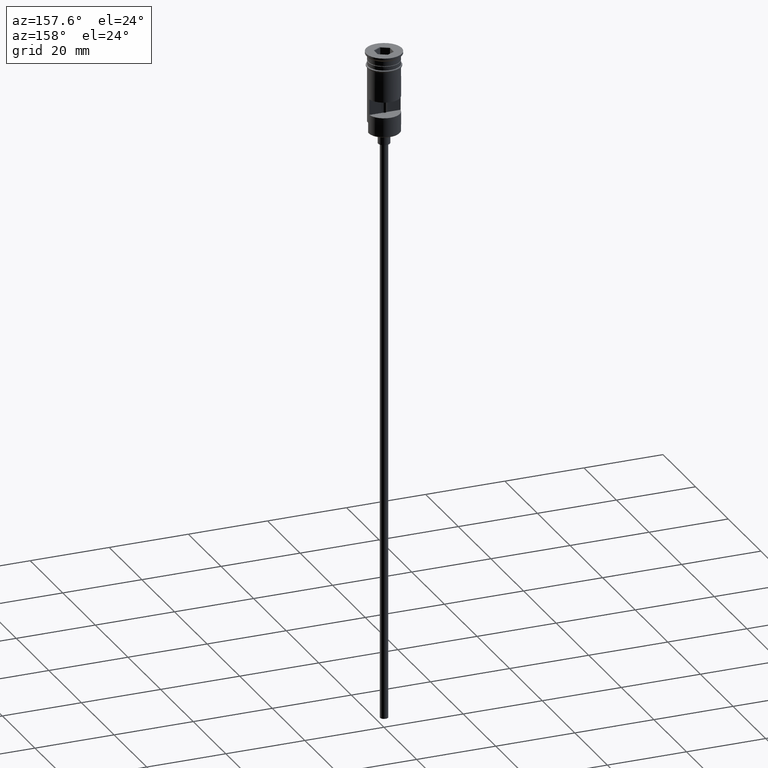
[diagram: clean part render]
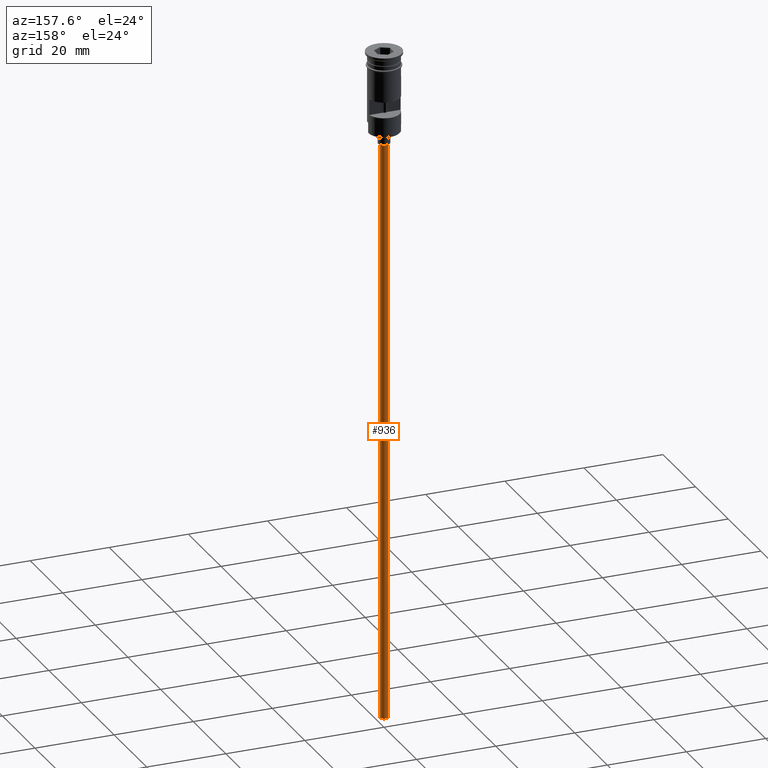
[diagram: same view with one face highlighted and labeled with its STEP entity id]
A machine part, auxiliary view. The second image highlights one B-rep face of the part: STEP entity #936.
In plain terms, the highlighted cylindrical surface (edge-blend (fillet) strip) has radius 1 mm, axis along (-0, -0, 1).
Its self-contained STEP definition (entity closure, byte-faithful):
#16 = DIRECTION ( 'NONE',  ( 1.000000000000000000, 0.000000000000000000, 0.000000000000000000 ) ) ;
#40 = CARTESIAN_POINT ( 'NONE',  ( 0.9999999999999997780, 0.000000000000000000, -23.49999999999999645 ) ) ;
#114 = LINE ( 'NONE', #605, #441 ) ;
#144 = CYLINDRICAL_SURFACE ( 'NONE', #1050, 0.9999999999999997780 ) ;
#158 = CIRCLE ( 'NONE', #1205, 0.9999999999999997780 ) ;
#190 = VERTEX_POINT ( 'NONE', #536 ) ;
#221 = VERTEX_POINT ( 'NONE', #1290 ) ;
#335 = DIRECTION ( 'NONE',  ( 0.000000000000000000, 0.000000000000000000, -1.000000000000000000 ) ) ;
#441 = VECTOR ( 'NONE', #1245, 1000.000000000000000 ) ;
#468 = AXIS2_PLACEMENT_3D ( 'NONE', #617, #1349, #1084 ) ;
#508 = ORIENTED_EDGE ( 'NONE', *, *, #1346, .F. ) ;
#519 = LINE ( 'NONE', #631, #1333 ) ;
#536 = CARTESIAN_POINT ( 'NONE',  ( -0.9999999999999997780, 1.224646799147352961E-16, -170.4999999999999716 ) ) ;
#555 = EDGE_CURVE ( 'NONE', #190, #221, #114, .T. ) ;
#605 = CARTESIAN_POINT ( 'NONE',  ( -0.9999999999999997780, 1.224646799147352961E-16, -170.4999999999999716 ) ) ;
#611 = ORIENTED_EDGE ( 'NONE', *, *, #1557, .F. ) ;
#617 = CARTESIAN_POINT ( 'NONE',  ( 0.000000000000000000, 0.000000000000000000, -170.4999999999999716 ) ) ;
#625 = CARTESIAN_POINT ( 'NONE',  ( 0.000000000000000000, 0.000000000000000000, -170.4999999999999716 ) ) ;
#631 = CARTESIAN_POINT ( 'NONE',  ( 0.9999999999999997780, 0.000000000000000000, -170.4999999999999716 ) ) ;
#681 = DIRECTION ( 'NONE',  ( -1.000000000000000000, 0.000000000000000000, 0.000000000000000000 ) ) ;
#722 = EDGE_CURVE ( 'NONE', #221, #1088, #158, .T. ) ;
#936 = ADVANCED_FACE ( 'NONE', ( #1244 ), #144, .T. ) ;
#994 = ORIENTED_EDGE ( 'NONE', *, *, #555, .T. ) ;
#1030 = DIRECTION ( 'NONE',  ( -0.000000000000000000, -0.000000000000000000, 1.000000000000000000 ) ) ;
#1050 = AXIS2_PLACEMENT_3D ( 'NONE', #625, #1209, #16 ) ;
#1057 = CARTESIAN_POINT ( 'NONE',  ( 0.000000000000000000, 0.000000000000000000, -23.49999999999999645 ) ) ;
#1084 = DIRECTION ( 'NONE',  ( -1.000000000000000000, 0.000000000000000000, 0.000000000000000000 ) ) ;
#1088 = VERTEX_POINT ( 'NONE', #40 ) ;
#1152 = CIRCLE ( 'NONE', #468, 0.9999999999999997780 ) ;
#1205 = AXIS2_PLACEMENT_3D ( 'NONE', #1057, #335, #681 ) ;
#1209 = DIRECTION ( 'NONE',  ( -0.000000000000000000, -0.000000000000000000, 1.000000000000000000 ) ) ;
#1221 = ORIENTED_EDGE ( 'NONE', *, *, #722, .T. ) ;
#1244 = FACE_OUTER_BOUND ( 'NONE', #1395, .T. ) ;
#1245 = DIRECTION ( 'NONE',  ( -0.000000000000000000, -0.000000000000000000, 1.000000000000000000 ) ) ;
#1264 = CARTESIAN_POINT ( 'NONE',  ( 0.9999999999999997780, 0.000000000000000000, -170.4999999999999716 ) ) ;
#1290 = CARTESIAN_POINT ( 'NONE',  ( -0.9999999999999997780, 1.224646799147352961E-16, -23.49999999999999645 ) ) ;
#1333 = VECTOR ( 'NONE', #1030, 1000.000000000000000 ) ;
#1346 = EDGE_CURVE ( 'NONE', #190, #1535, #1152, .T. ) ;
#1349 = DIRECTION ( 'NONE',  ( 0.000000000000000000, 0.000000000000000000, -1.000000000000000000 ) ) ;
#1395 = EDGE_LOOP ( 'NONE', ( #508, #994, #1221, #611 ) ) ;
#1535 = VERTEX_POINT ( 'NONE', #1264 ) ;
#1557 = EDGE_CURVE ( 'NONE', #1535, #1088, #519, .T. ) ;